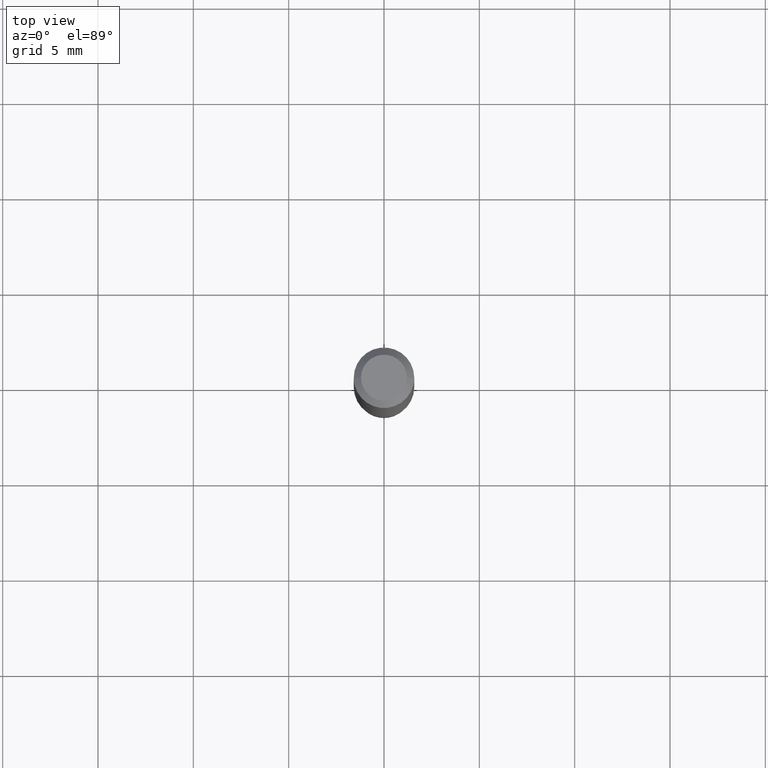
[diagram: clean part render]
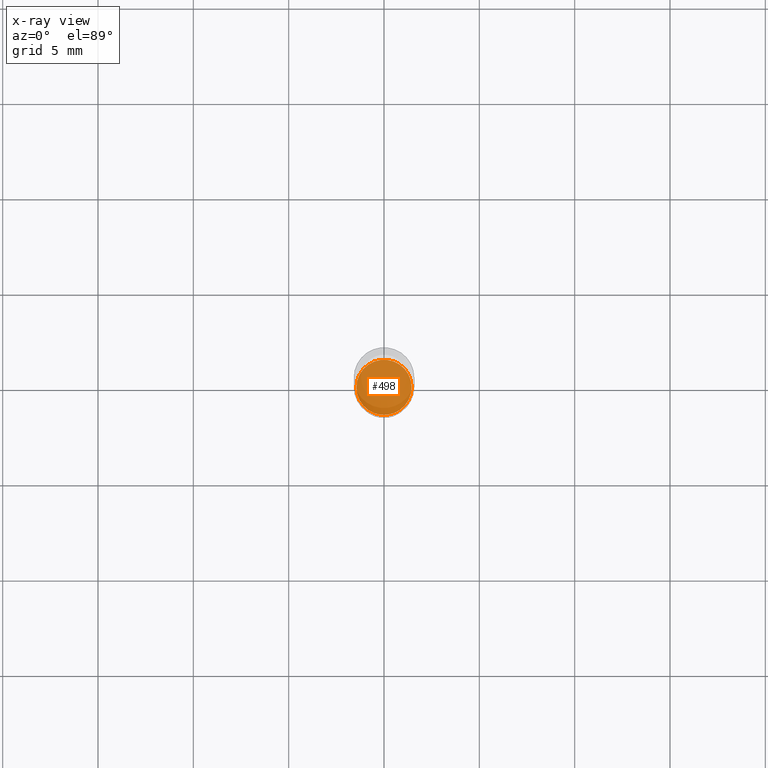
[diagram: x-ray — body ghosted, one internal face saturated and labeled with its STEP entity id]
A machine part, top view, then the same camera in x-ray: the body is ghosted and one INTERNAL B-rep face — a face not visible from any outside direction — is saturated and labeled: STEP entity #498.
In plain terms, the highlighted planar face has unit normal (-0, 0, 1).
Its self-contained STEP definition (entity closure, byte-faithful):
#10 = DIRECTION ( 'NONE',  ( 1.000000000000000000, -6.982962677686271444E-15, 0.000000000000000000 ) ) ;
#23 = CIRCLE ( 'NONE', #282, 0.05700000000000008532 ) ;
#39 = CARTESIAN_POINT ( 'NONE',  ( 2.824516471143833307E-29, -4.032660946363833383E-15, -1.155000000000000027 ) ) ;
#63 = CIRCLE ( 'NONE', #89, 0.05700000000000008532 ) ;
#80 = VERTEX_POINT ( 'NONE', #377 ) ;
#89 = AXIS2_PLACEMENT_3D ( 'NONE', #39, #376, #10 ) ;
#106 = FACE_OUTER_BOUND ( 'NONE', #467, .T. ) ;
#127 = EDGE_CURVE ( 'NONE', #486, #80, #23, .T. ) ;
#152 = DIRECTION ( 'NONE',  ( 1.000000000000000000, -6.982962677686271444E-15, 0.000000000000000000 ) ) ;
#211 = AXIS2_PLACEMENT_3D ( 'NONE', #304, #462, #500 ) ;
#222 = PLANE ( 'NONE',  #211 ) ;
#262 = CARTESIAN_POINT ( 'NONE',  ( -0.05700000000000008532, -3.625002359806464716E-15, -1.155000000000000027 ) ) ;
#268 = ORIENTED_EDGE ( 'NONE', *, *, #287, .F. ) ;
#282 = AXIS2_PLACEMENT_3D ( 'NONE', #432, #360, #152 ) ;
#287 = EDGE_CURVE ( 'NONE', #80, #486, #63, .T. ) ;
#304 = CARTESIAN_POINT ( 'NONE',  ( 2.824516471143833307E-29, -4.032660946363833383E-15, -1.155000000000000027 ) ) ;
#360 = DIRECTION ( 'NONE',  ( -2.445468806185136597E-29, 3.491481338843145583E-15, 1.000000000000000000 ) ) ;
#376 = DIRECTION ( 'NONE',  ( -2.445468806185136597E-29, 3.491481338843145583E-15, 1.000000000000000000 ) ) ;
#377 = CARTESIAN_POINT ( 'NONE',  ( 0.05700000000000008532, -4.430689818991951185E-15, -1.155000000000000027 ) ) ;
#432 = CARTESIAN_POINT ( 'NONE',  ( 2.824516471143833307E-29, -4.032660946363833383E-15, -1.155000000000000027 ) ) ;
#445 = ORIENTED_EDGE ( 'NONE', *, *, #127, .F. ) ;
#462 = DIRECTION ( 'NONE',  ( -2.438088387897960049E-29, 3.491481338843145188E-15, 1.000000000000000000 ) ) ;
#467 = EDGE_LOOP ( 'NONE', ( #268, #445 ) ) ;
#486 = VERTEX_POINT ( 'NONE', #262 ) ;
#498 = ADVANCED_FACE ( 'NONE', ( #106 ), #222, .F. ) ;
#500 = DIRECTION ( 'NONE',  ( 1.000000000000000000, -6.982962677686265922E-15, 4.876176775795935793E-29 ) ) ;